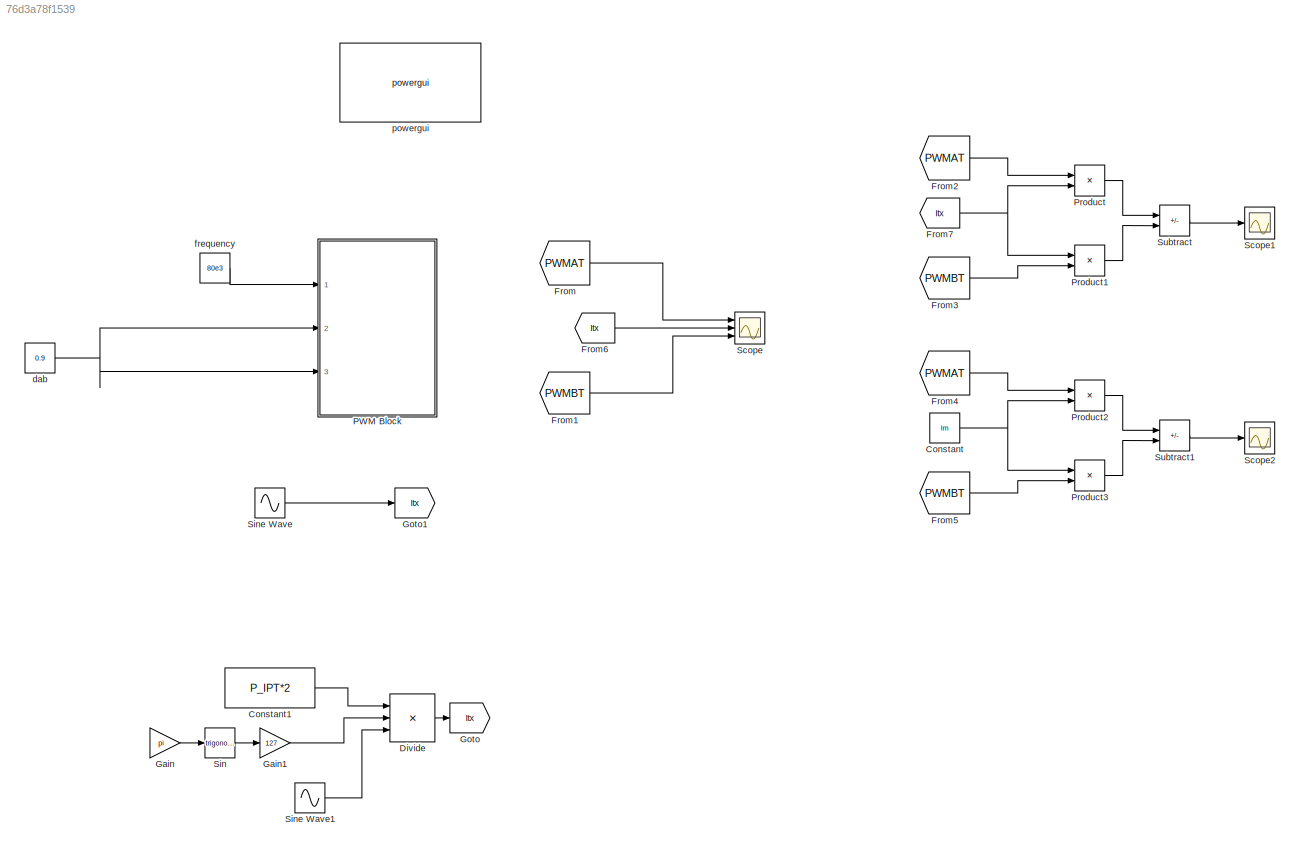
MODEL slx_76d3a78f1539
KIND model
CONFIG AbsTol = auto
CONFIG EnableMultiTasking = off
CONFIG FixedStep = auto
CONFIG InitFcn = SampleTime=1e-7;\nP_IPT=40;\nI_tx=5;\nIm=5;\n
CONFIG MaxStep = auto
CONFIG MinStep = auto
CONFIG RelTol = 1e-3
CONFIG SampleTimeConstraint = Unconstrained
CONFIG SolverName = VariableStepAuto
CONFIG StartTime = 0.0
CONFIG StopTime = 2/80e3
BLOCK [Constant] Constant
  Value = Im
BLOCK [Constant] Constant1
  Commented = on
  Value = P_IPT*2
BLOCK [Product] Divide
  Commented = on
  Inputs = */*
  Ports = [3, 1]
BLOCK [From] From
  GotoTag = PWMAT
  TagVisibility = global
BLOCK [From] From1
  GotoTag = PWMBT
  TagVisibility = global
BLOCK [From] From2
  GotoTag = PWMAT
  TagVisibility = global
BLOCK [From] From3
  GotoTag = PWMBT
  TagVisibility = global
BLOCK [From] From4
  GotoTag = PWMAT
  TagVisibility = global
BLOCK [From] From5
  GotoTag = PWMBT
  TagVisibility = global
BLOCK [From] From6
  GotoTag = Itx
BLOCK [From] From7
  GotoTag = Itx
BLOCK [Gain] Gain
  Commented = on
  Gain = pi
BLOCK [Gain] Gain1
  Commented = on
  Gain = 127
BLOCK [Goto] Goto
  Commented = on
  GotoTag = Itx
BLOCK [Goto] Goto1
  GotoTag = Itx
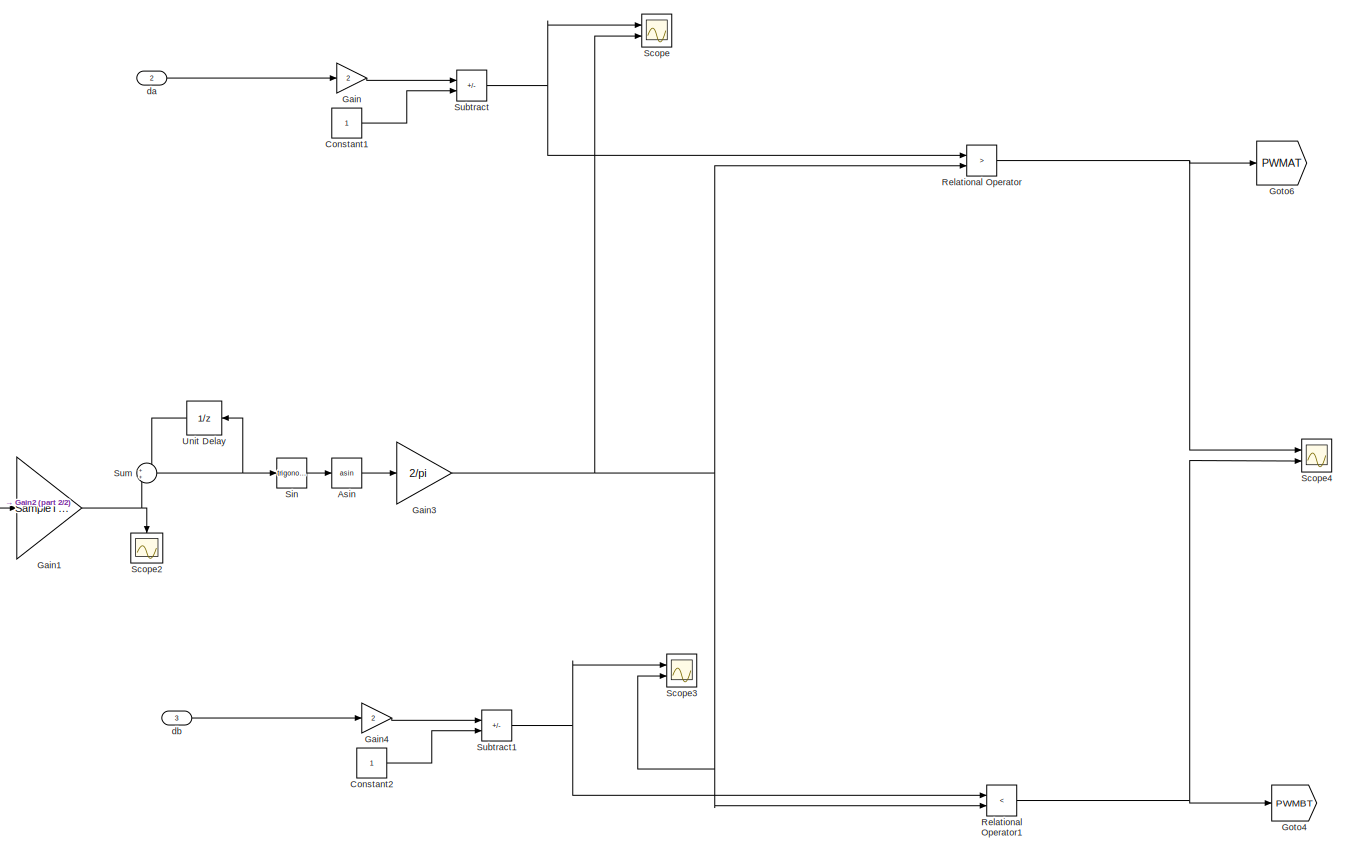
[diagram: PWM Block - part 1/2, most of the canvas]
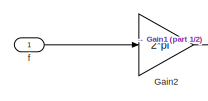
[diagram: PWM Block - part 2/2, middle left region]
BLOCK [SubSystem] PWM Block
  Ports = [3]
  RequestExecContextInheritance = off
BLOCK [Trigonometry] PWM Block/Asin
  Operator = asin
  Ports = [1, 1]
BLOCK [Constant] PWM Block/Constant1
BLOCK [Constant] PWM Block/Constant2
BLOCK [Gain] PWM Block/Gain
  Gain = 2
BLOCK [Gain] PWM Block/Gain1
  Gain = SampleTime
BLOCK [Gain] PWM Block/Gain2
  Gain = 2*pi
BLOCK [Gain] PWM Block/Gain3
  Gain = 2/pi
BLOCK [Gain] PWM Block/Gain4
  Gain = 2
BLOCK [Goto] PWM Block/Goto4
  GotoTag = PWMBT
  TagVisibility = global
BLOCK [Goto] PWM Block/Goto6
  GotoTag = PWMAT
  TagVisibility = global
BLOCK [RelationalOperator] PWM Block/Relational Operator
  InputSameDT = off
  Operator = >
  OutDataTypeStr = boolean
  Ports = [2, 1]
  RndMeth = Simplest
BLOCK [RelationalOperator] PWM Block/Relational Operator1
  InputSameDT = off
  Operator = <
  OutDataTypeStr = boolean
  Ports = [2, 1]
  RndMeth = Simplest
BLOCK [Scope] PWM Block/Scope
  Floating = off
  NumInputPorts = 2
  Ports = [2]
  ScopeSpecificationString = Simulink.scopes.TimeScopeBlockCfg('CurrentConfiguration', extmgr.ConfigurationSet(extmgr.Configuration('Core','General UI',true),extmgr.Configuration('Core','Source UI',true),extmgr.Configuration('Sources','WiredSimulink',true,'DataLoggingVariableName','ScopeData1'),extmgr.Configuration('Visuals','Time Domain',true,'SerializedDisplays',{struct('MinYLimReal','-1.24734','MaxYLimReal','1.09132','YLab...<+1452ch>
BLOCK [Scope] PWM Block/Scope2
  Floating = off
  NameLocation = left
  NumInputPorts = 1
  Ports = [1]
  ScopeSpecificationString = Simulink.scopes.TimeScopeBlockCfg('CurrentConfiguration', extmgr.ConfigurationSet(extmgr.Configuration('Core','General UI',true),extmgr.Configuration('Core','Source UI',true),extmgr.Configuration('Sources','WiredSimulink',true,'DataLoggingVariableName','ScopeData1'),extmgr.Configuration('Visuals','Time Domain',true),extmgr.Configuration('Tools','Plot Navigation',true),extmgr.Configuration('Tools',...<+40ch>
BLOCK [Scope] PWM Block/Scope3
  Floating = off
  NumInputPorts = 2
  Ports = [2]
  ScopeSpecificationString = Simulink.scopes.TimeScopeBlockCfg('CurrentConfiguration', extmgr.ConfigurationSet(extmgr.Configuration('Core','General UI',true),extmgr.Configuration('Core','Source UI',true),extmgr.Configuration('Sources','WiredSimulink',true,'DataLoggingVariableName','ScopeData2'),extmgr.Configuration('Visuals','Time Domain',true,'SerializedDisplays',{struct('MinYLimReal','-1.24734','MaxYLimReal','1.09132','YLab...<+1452ch>
BLOCK [Scope] PWM Block/Scope4
  Floating = off
  NumInputPorts = 2
  Ports = [2]
  ScopeSpecificationString = Simulink.scopes.TimeScopeBlockCfg('CurrentConfiguration', extmgr.ConfigurationSet(extmgr.Configuration('Core','General UI',true),extmgr.Configuration('Core','Source UI',true),extmgr.Configuration('Sources','WiredSimulink',true,'DataLoggingVariableName','ScopeData3'),extmgr.Configuration('Visuals','Time Domain',true,'SerializedDisplays',{struct('MinYLimReal','-0.125','MaxYLimReal','1.125','YLabelRe...<+1505ch>
BLOCK [Trigonometry] PWM Block/Sin
  Ports = [1, 1]
BLOCK [Sum] PWM Block/Subtract
  IconShape = rectangular
  Inputs = +-
  Ports = [2, 1]
BLOCK [Sum] PWM Block/Subtract1
  IconShape = rectangular
  Inputs = +-
  Ports = [2, 1]
BLOCK [Sum] PWM Block/Sum
  Ports = [2, 1]
BLOCK [UnitDelay] PWM Block/Unit Delay
  HasFrameUpgradeWarning = on
  NameLocation = top
  SampleTime = -1
BLOCK [Inport] PWM Block/da
  Port = 2
BLOCK [Inport] PWM Block/db
  Port = 3
BLOCK [Inport] PWM Block/f
BLOCK [Product] Product
  Ports = [2, 1]
BLOCK [Product] Product1
  Ports = [2, 1]
BLOCK [Product] Product2
  Ports = [2, 1]
BLOCK [Product] Product3
  Ports = [2, 1]
BLOCK [Scope] Scope
  Floating = off
  NumInputPorts = 3
  Ports = [3]
  ScopeSpecificationString = Simulink.scopes.TimeScopeBlockCfg('CurrentConfiguration', extmgr.ConfigurationSet(extmgr.Configuration('Core','General UI',true),extmgr.Configuration('Core','Source UI',true),extmgr.Configuration('Sources','WiredSimulink',true,'DataLoggingVariableName','ScopeData1'),extmgr.Configuration('Visuals','Time Domain',true,'SerializedDisplays',{struct('MinYLimReal','-6.24951','MaxYLimReal','6.24951','YLab...<+1557ch>
BLOCK [Scope] Scope1
  Floating = off
  NumInputPorts = 1
  Ports = [1]
  ScopeSpecificationString = Simulink.scopes.TimeScopeBlockCfg('CurrentConfiguration', extmgr.ConfigurationSet(extmgr.Configuration('Core','General UI',true),extmgr.Configuration('Core','Source UI',true),extmgr.Configuration('Sources','WiredSimulink',true,'DataLoggingVariableName','Itx_cap','DataLogging',true,'DataLoggingSaveFormat','StructureWithTime'),extmgr.Configuration('Visuals','Time Domain',true,'SerializedDisplays',{s...<+1427ch>
BLOCK [Scope] Scope2
  Floating = off
  NumInputPorts = 1
  Ports = [1]
  ScopeSpecificationString = Simulink.scopes.TimeScopeBlockCfg('CurrentConfiguration', extmgr.ConfigurationSet(extmgr.Configuration('Core','General UI',true),extmgr.Configuration('Core','Source UI',true),extmgr.Configuration('Sources','WiredSimulink',true,'DataLoggingVariableName','Im_cap','DataLogging',true),extmgr.Configuration('Visuals','Time Domain',true,'SerializedDisplays',{struct('MinYLimReal','-6.25','MaxYLimReal','6....<+1398ch>
BLOCK [Trigonometry] Sin
  Commented = on
  Ports = [1, 1]
BLOCK [Sin] Sine Wave
  Amplitude = I_tx
  Frequency = 80e3*2*pi
  Phase = pi
  Ports = [0, 1]
  SampleTime = SampleTime
BLOCK [Sin] Sine Wave1
  Commented = on
  Frequency = 80e3*2*pi
  Phase = pi
  Ports = [0, 1]
  SampleTime = SampleTime
BLOCK [Sum] Subtract
  IconShape = rectangular
  Inputs = +-
  Ports = [2, 1]
BLOCK [Sum] Subtract1
  IconShape = rectangular
  Inputs = +-
  Ports = [2, 1]
BLOCK [Constant] dab
  Value = 0.9
BLOCK [Constant] frequency
  Value = 80e3
BLOCK [Reference] powergui  REF=powerlib/powergui
  Ports = []
  Priority = 1
  SourceBlock = powerlib/powergui
  SourceProductBaseCode = PS
  SourceType = PSB option menu block
LINE Constant1:1 -> Divide:1
NET Constant:1 -> Product2:2, Product3:1
LINE Divide:1 -> Goto:1
LINE From1:1 -> Scope:3
LINE From2:1 -> Product:1
LINE From3:1 -> Product1:2
LINE From4:1 -> Product2:1
LINE From5:1 -> Product3:2
LINE From6:1 -> Scope:2
NET From7:1 -> Product1:1, Product:2
LINE From:1 -> Scope:1
LINE Gain1:1 -> Divide:2
LINE Gain:1 -> Sin:1
LINE PWM Block/Asin:1 -> PWM Block/Gain3:1
LINE PWM Block/Constant1:1 -> PWM Block/Subtract:2
LINE PWM Block/Constant2:1 -> PWM Block/Subtract1:2
NET PWM Block/Gain1:1 -> PWM Block/Scope2:1, PWM Block/Sum:2
LINE PWM Block/Gain2:1 -> PWM Block/Gain1:1
NET PWM Block/Gain3:1 -> PWM Block/Relational Operator1:2, PWM Block/Relational Operator:2, PWM Block/Scope3:2, PWM Block/Scope:2
LINE PWM Block/Gain4:1 -> PWM Block/Subtract1:1
LINE PWM Block/Gain:1 -> PWM Block/Subtract:1
NET PWM Block/Relational Operator1:1 -> PWM Block/Goto4:1, PWM Block/Scope4:2
NET PWM Block/Relational Operator:1 -> PWM Block/Goto6:1, PWM Block/Scope4:1
LINE PWM Block/Sin:1 -> PWM Block/Asin:1
NET PWM Block/Subtract1:1 -> PWM Block/Relational Operator1:1, PWM Block/Scope3:1
NET PWM Block/Subtract:1 -> PWM Block/Relational Operator:1, PWM Block/Scope:1
NET PWM Block/Sum:1 -> PWM Block/Sin:1, PWM Block/Unit Delay:1
LINE PWM Block/Unit Delay:1 -> PWM Block/Sum:1
LINE PWM Block/da:1 -> PWM Block/Gain:1
LINE PWM Block/db:1 -> PWM Block/Gain4:1
LINE PWM Block/f:1 -> PWM Block/Gain2:1
LINE Product1:1 -> Subtract:2
LINE Product2:1 -> Subtract1:1
LINE Product3:1 -> Subtract1:2
LINE Product:1 -> Subtract:1
LINE Sin:1 -> Gain1:1
LINE Sine Wave1:1 -> Divide:3
LINE Sine Wave:1 -> Goto1:1
LINE Subtract1:1 -> Scope2:1
LINE Subtract:1 -> Scope1:1
NET dab:1 -> PWM Block:2, PWM Block:3
LINE frequency:1 -> PWM Block:1
note: NET lines group one-source signal fan-out (src -> all destinations, sorted); 1:1 wires keep LINE
